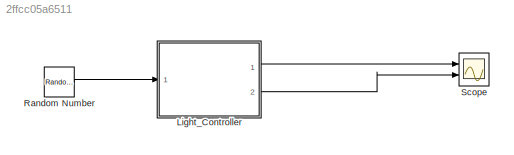
MODEL slx_2ffcc05a6511
KIND model
CONFIG AbsTol = auto
CONFIG EnableMultiTasking = off
CONFIG FixedStep = auto
CONFIG MaxStep = auto
CONFIG MinStep = auto
CONFIG RelTol = 1e-3
CONFIG SampleTimeConstraint = Unconstrained
CONFIG SolverName = VariableStepAuto
CONFIG StartTime = 0.0
CONFIG StopTime = 30
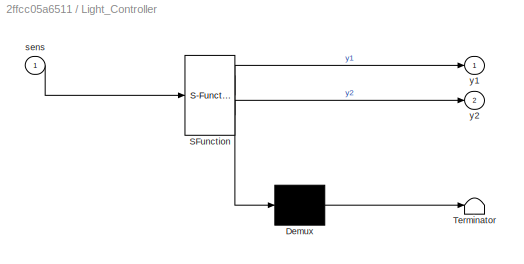
BLOCK [SubSystem] Light_Controller
  ErrorFcn = Stateflow.Translate.translate
  PermitHierarchicalResolution = ExplicitOnly
  Ports = [1, 2]
  RequestExecContextInheritance = off
  SFBlockType = Chart
  TreatAsAtomicUnit = on
BLOCK [Demux] Light_Controller/ Demux 
  Outputs = 1
  Ports = [1, 1]
BLOCK [S-Function] Light_Controller/ SFunction 
  EnableBusSupport = on
  FunctionName = sf_sfun
  PortCounts = [1 3]
  Ports = [1, 3]
  SFcnIsStateOwnerBlock = off
  SFunctionDeploymentMode = off
  Tag = Stateflow S-Function 2
BLOCK [Terminator] Light_Controller/ Terminator 
BLOCK [Inport] Light_Controller/sens
BLOCK [Outport] Light_Controller/y1
  VectorParamsAs1DForOutWhenUnconnected = off
BLOCK [Outport] Light_Controller/y2
  Port = 2
  VectorParamsAs1DForOutWhenUnconnected = off
BLOCK [RandomNumber] Random Number
  SampleTime = 0.1
BLOCK [Scope] Scope
  Floating = off
  NumInputPorts = 2
  Ports = [2]
  ScopeSpecificationString = Simulink.scopes.TimeScopeBlockCfg('CurrentConfiguration', extmgr.ConfigurationSet(extmgr.Configuration('Core','General UI',true),extmgr.Configuration('Core','Source UI',true),extmgr.Configuration('Sources','WiredSimulink',true),extmgr.Configuration('Visuals','Time Domain',true,'SerializedDisplays',{struct('MinYLimReal','0.75','MaxYLimReal','3.25','YLabelReal','','MinYLimMag','0.75','MaxYLimMag','3...<+2641ch>
LINE Light_Controller:1 -> Scope:1
LINE Light_Controller:2 -> Scope:2
LINE Random Number:1 -> Light_Controller:1
CHART Light_Controller states=5 transitions=6
  STATE_LABEL 'Stop\ny1 = RED;\ny2 = GREEN;'
  STATE_LABEL 'StopForTraffic\ny1 = RED;\ny2 = GREEN;'
  STATE_LABEL 'StopToGo\ny1 = RED;\ny2 = YELLOW;'
  STATE_LABEL 'GoToStop\ny1 = YELLOW;\ny2 = RED;'
  STATE_LABEL 'Go\ny1 = GREEN;\ny2 = RED;'
CHART  states=0 transitions=0
